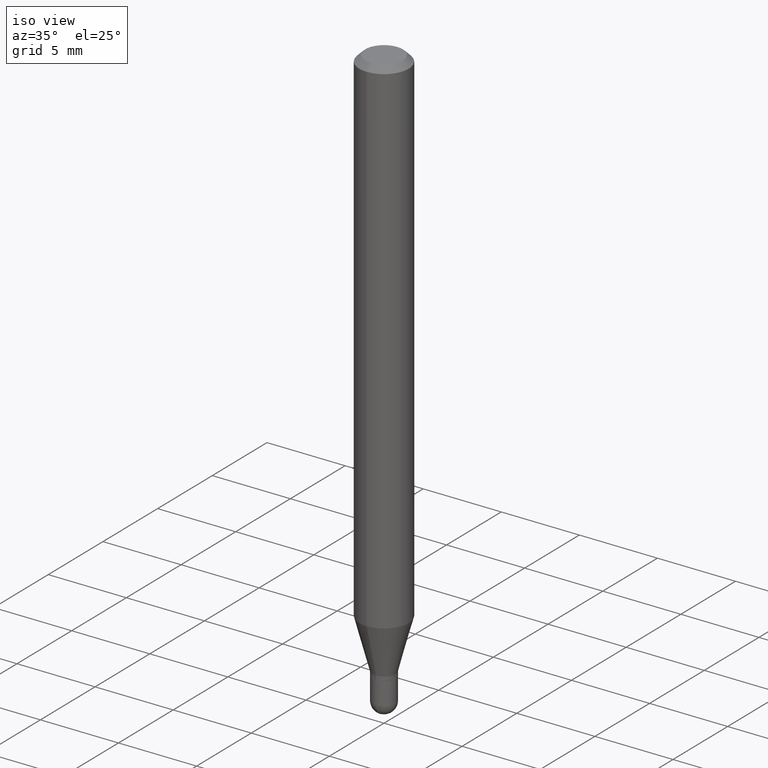
[diagram: clean part render]
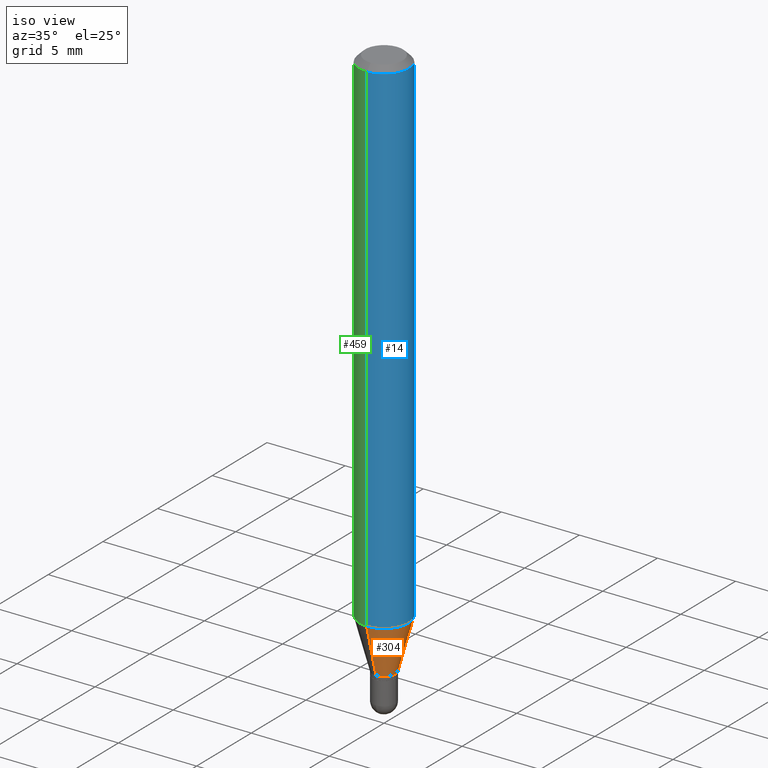
[diagram: same view with three faces highlighted in distinct colors, each labeled with its STEP entity id]
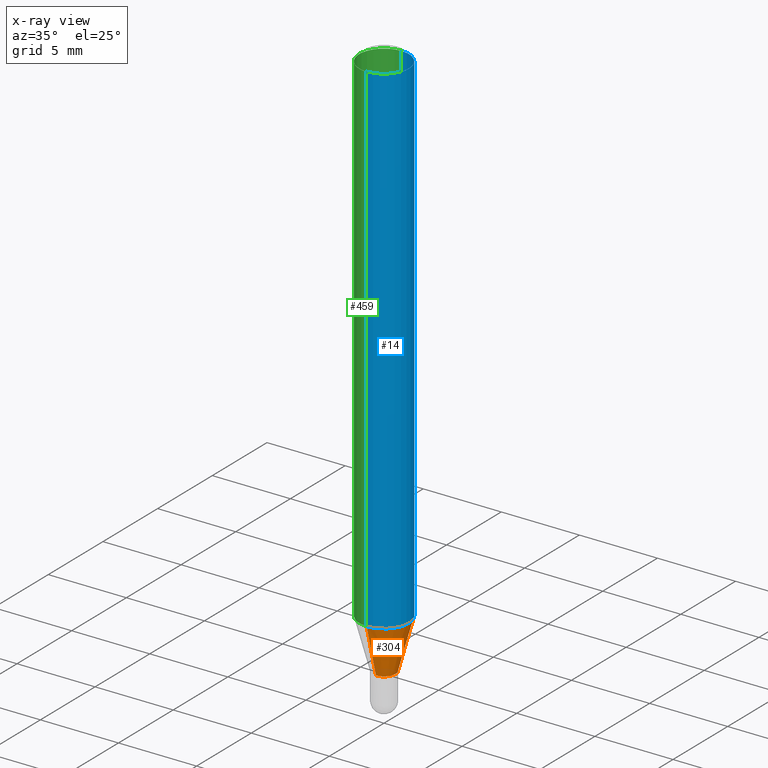
[diagram: x-ray of the same camera — body ghosted, the three highlighted faces saturated]
A machine part, iso view with three faces highlighted in distinct colors.
The next image is the same camera in x-ray (body ghosted, the three faces saturated) — at least one of them is partly hidden behind the body in this view.
Their STEP definitions:

[orange] entity #304 — the highlighted conical surface has half-angle 15 deg.
#1 = CONICAL_SURFACE ( 'NONE', #42, 0.02899999999999992514, 0.2617993877991505736 ) ;
#16 = LINE ( 'NONE', #215, #405 ) ;
#18 = LINE ( 'NONE', #26, #271 ) ;
#26 = CARTESIAN_POINT ( 'NONE',  ( 2.060573933704627882E-16, 0.02899999999999502281, -1.403000000000000025 ) ) ;
#27 = AXIS2_PLACEMENT_3D ( 'NONE', #417, #62, #143 ) ;
#31 = VERTEX_POINT ( 'NONE', #305 ) ;
#33 = ORIENTED_EDGE ( 'NONE', *, *, #41, .T. ) ;
#41 = EDGE_CURVE ( 'NONE', #361, #131, #247, .T. ) ;
#42 = AXIS2_PLACEMENT_3D ( 'NONE', #407, #54, #210 ) ;
#50 = VERTEX_POINT ( 'NONE', #452 ) ;
#54 = DIRECTION ( 'NONE',  ( -2.445483780247488928E-29, 3.491459895133586651E-15, 1.000000000000000000 ) ) ;
#62 = DIRECTION ( 'NONE',  ( -2.445483780247488928E-29, 3.491459895133586651E-15, 1.000000000000000000 ) ) ;
#131 = VERTEX_POINT ( 'NONE', #201 ) ;
#138 = DIRECTION ( 'NONE',  ( -2.445483780247488928E-29, 3.491459895133586651E-15, 1.000000000000000000 ) ) ;
#143 = DIRECTION ( 'NONE',  ( -6.982962677686265922E-15, -1.000000000000000000, 4.370956789862821150E-15 ) ) ;
#178 = CIRCLE ( 'NONE', #27, 0.06250000000000000000 ) ;
#179 = DIRECTION ( 'NONE',  ( 1.839019923739602287E-15, 0.2588190451025252359, 0.9659258262890670910 ) ) ;
#182 = DIRECTION ( 'NONE',  ( -1.807323732225332111E-15, -0.2588190451025184635, 0.9659258262890689783 ) ) ;
#201 = CARTESIAN_POINT ( 'NONE',  ( 3.250733016102783684E-16, 0.02899999999999502281, -1.403000000000000025 ) ) ;
#207 = CARTESIAN_POINT ( 'NONE',  ( -2.025059176528669025E-16, -0.02900000000000482400, -1.403000000000000025 ) ) ;
#208 = EDGE_CURVE ( 'NONE', #131, #50, #18, .T. ) ;
#210 = DIRECTION ( 'NONE',  ( -6.982962677686265922E-15, -1.000000000000000000, 0.000000000000000000 ) ) ;
#214 = ORIENTED_EDGE ( 'NONE', *, *, #352, .F. ) ;
#215 = CARTESIAN_POINT ( 'NONE',  ( -2.025059176528669025E-16, -0.02900000000000482400, -1.403000000000000025 ) ) ;
#216 = DIRECTION ( 'NONE',  ( -6.982962677686265922E-15, -1.000000000000000000, 0.000000000000000000 ) ) ;
#236 = AXIS2_PLACEMENT_3D ( 'NONE', #266, #138, #216 ) ;
#247 = CIRCLE ( 'NONE', #236, 0.02899999999999992514 ) ;
#266 = CARTESIAN_POINT ( 'NONE',  ( 3.431013743687227308E-29, -4.898518232872422508E-15, -1.403000000000000025 ) ) ;
#271 = VECTOR ( 'NONE', #179, 39.37007874015748143 ) ;
#285 = ORIENTED_EDGE ( 'NONE', *, *, #323, .F. ) ;
#304 = ADVANCED_FACE ( 'NONE', ( #411 ), #1, .T. ) ;
#305 = CARTESIAN_POINT ( 'NONE',  ( -4.364351673553605587E-16, -0.06250000000000449640, -1.277976297946442630 ) ) ;
#323 = EDGE_CURVE ( 'NONE', #361, #31, #16, .T. ) ;
#352 = EDGE_CURVE ( 'NONE', #31, #50, #178, .T. ) ;
#361 = VERTEX_POINT ( 'NONE', #207 ) ;
#405 = VECTOR ( 'NONE', #182, 39.37007874015748854 ) ;
#407 = CARTESIAN_POINT ( 'NONE',  ( 3.431013743687227308E-29, -4.898518232872422508E-15, -1.403000000000000025 ) ) ;
#411 = FACE_OUTER_BOUND ( 'NONE', #483, .T. ) ;
#417 = CARTESIAN_POINT ( 'NONE',  ( 3.125270308168757960E-29, -4.462002991211296494E-15, -1.277976297946442852 ) ) ;
#452 = CARTESIAN_POINT ( 'NONE',  ( 4.440892098500935790E-16, 0.06249999999999551054, -1.277976297946443296 ) ) ;
#483 = EDGE_LOOP ( 'NONE', ( #33, #495, #214, #285 ) ) ;
#495 = ORIENTED_EDGE ( 'NONE', *, *, #208, .T. ) ;

[blue] entity #14 — the highlighted cylindrical surface (edge-blend (fillet) strip) has radius 1.5875 mm, axis along (-0, 0, 1).
#14 = ADVANCED_FACE ( 'NONE', ( #429 ), #75, .T. ) ;
#27 = AXIS2_PLACEMENT_3D ( 'NONE', #417, #62, #143 ) ;
#31 = VERTEX_POINT ( 'NONE', #305 ) ;
#50 = VERTEX_POINT ( 'NONE', #452 ) ;
#57 = AXIS2_PLACEMENT_3D ( 'NONE', #168, #130, #321 ) ;
#62 = DIRECTION ( 'NONE',  ( -2.445483780247488928E-29, 3.491459895133586651E-15, 1.000000000000000000 ) ) ;
#74 = VECTOR ( 'NONE', #487, 39.37007874015748143 ) ;
#75 = CYLINDRICAL_SURFACE ( 'NONE', #260, 0.06250000000000000000 ) ;
#76 = EDGE_CURVE ( 'NONE', #124, #250, #338, .T. ) ;
#77 = CARTESIAN_POINT ( 'NONE',  ( -4.364351673553912750E-16, -0.06250000000000005551, -0.01499999999999979128 ) ) ;
#124 = VERTEX_POINT ( 'NONE', #77 ) ;
#130 = DIRECTION ( 'NONE',  ( -2.445483780247488928E-29, 3.491459895133586651E-15, 1.000000000000000000 ) ) ;
#143 = DIRECTION ( 'NONE',  ( -6.982962677686265922E-15, -1.000000000000000000, 4.370956789862821150E-15 ) ) ;
#151 = DIRECTION ( 'NONE',  ( -6.982962677686265922E-15, -1.000000000000000000, 3.491459895133586651E-15 ) ) ;
#168 = CARTESIAN_POINT ( 'NONE',  ( 3.668225670371235459E-31, -5.237189842700382786E-17, -0.01500000000000000812 ) ) ;
#173 = ORIENTED_EDGE ( 'NONE', *, *, #352, .T. ) ;
#178 = CIRCLE ( 'NONE', #27, 0.06250000000000000000 ) ;
#230 = CARTESIAN_POINT ( 'NONE',  ( 0.000000000000000000, 0.000000000000000000, 0.000000000000000000 ) ) ;
#249 = CARTESIAN_POINT ( 'NONE',  ( 4.440892098500625669E-16, 0.06250000000000000000, -2.182162434458491657E-16 ) ) ;
#250 = VERTEX_POINT ( 'NONE', #494 ) ;
#255 = LINE ( 'NONE', #249, #74 ) ;
#260 = AXIS2_PLACEMENT_3D ( 'NONE', #230, #393, #151 ) ;
#277 = EDGE_CURVE ( 'NONE', #31, #124, #485, .T. ) ;
#298 = EDGE_CURVE ( 'NONE', #50, #250, #255, .T. ) ;
#305 = CARTESIAN_POINT ( 'NONE',  ( -4.364351673553605587E-16, -0.06250000000000449640, -1.277976297946442630 ) ) ;
#308 = EDGE_LOOP ( 'NONE', ( #173, #510, #375, #504 ) ) ;
#321 = DIRECTION ( 'NONE',  ( -6.982962677686265922E-15, -1.000000000000000000, 3.483106191921935554E-15 ) ) ;
#338 = CIRCLE ( 'NONE', #57, 0.06250000000000000000 ) ;
#352 = EDGE_CURVE ( 'NONE', #31, #50, #178, .T. ) ;
#372 = CARTESIAN_POINT ( 'NONE',  ( -4.364351673553916201E-16, -0.06250000000000000000, 2.182162434458491657E-16 ) ) ;
#375 = ORIENTED_EDGE ( 'NONE', *, *, #76, .F. ) ;
#393 = DIRECTION ( 'NONE',  ( -2.445483780247488928E-29, 3.491459895133586651E-15, 1.000000000000000000 ) ) ;
#413 = DIRECTION ( 'NONE',  ( -2.445483780247488928E-29, 3.491459895133586651E-15, 1.000000000000000000 ) ) ;
#417 = CARTESIAN_POINT ( 'NONE',  ( 3.125270308168757960E-29, -4.462002991211296494E-15, -1.277976297946442852 ) ) ;
#429 = FACE_OUTER_BOUND ( 'NONE', #308, .T. ) ;
#452 = CARTESIAN_POINT ( 'NONE',  ( 4.440892098500935790E-16, 0.06249999999999551054, -1.277976297946443296 ) ) ;
#479 = VECTOR ( 'NONE', #413, 39.37007874015748143 ) ;
#485 = LINE ( 'NONE', #372, #479 ) ;
#487 = DIRECTION ( 'NONE',  ( -2.445483780247488928E-29, 3.491459895133586651E-15, 1.000000000000000000 ) ) ;
#494 = CARTESIAN_POINT ( 'NONE',  ( 4.440892098500940720E-16, 0.06249999999999995143, -0.01500000000000022669 ) ) ;
#504 = ORIENTED_EDGE ( 'NONE', *, *, #277, .F. ) ;
#510 = ORIENTED_EDGE ( 'NONE', *, *, #298, .T. ) ;

[green] entity #459 — the highlighted cylindrical surface (edge-blend (fillet) strip) has radius 1.5875 mm, axis along (-0, 0, 1).
#3 = DIRECTION ( 'NONE',  ( -6.982962677686265922E-15, -1.000000000000000000, 3.483106191921935554E-15 ) ) ;
#21 = CIRCLE ( 'NONE', #115, 0.06250000000000000000 ) ;
#31 = VERTEX_POINT ( 'NONE', #305 ) ;
#34 = AXIS2_PLACEMENT_3D ( 'NONE', #303, #102, #341 ) ;
#50 = VERTEX_POINT ( 'NONE', #452 ) ;
#60 = CIRCLE ( 'NONE', #381, 0.06250000000000000000 ) ;
#74 = VECTOR ( 'NONE', #487, 39.37007874015748143 ) ;
#77 = CARTESIAN_POINT ( 'NONE',  ( -4.364351673553912750E-16, -0.06250000000000005551, -0.01499999999999979128 ) ) ;
#91 = ORIENTED_EDGE ( 'NONE', *, *, #277, .T. ) ;
#102 = DIRECTION ( 'NONE',  ( -2.445483780247488928E-29, 3.491459895133586651E-15, 1.000000000000000000 ) ) ;
#115 = AXIS2_PLACEMENT_3D ( 'NONE', #376, #368, #217 ) ;
#124 = VERTEX_POINT ( 'NONE', #77 ) ;
#157 = EDGE_CURVE ( 'NONE', #250, #124, #60, .T. ) ;
#205 = DIRECTION ( 'NONE',  ( -2.445483780247488928E-29, 3.491459895133586651E-15, 1.000000000000000000 ) ) ;
#217 = DIRECTION ( 'NONE',  ( -6.982962677686265922E-15, -1.000000000000000000, 4.370956789862821150E-15 ) ) ;
#226 = EDGE_CURVE ( 'NONE', #50, #31, #21, .T. ) ;
#244 = EDGE_LOOP ( 'NONE', ( #486, #390, #91, #469 ) ) ;
#249 = CARTESIAN_POINT ( 'NONE',  ( 4.440892098500625669E-16, 0.06250000000000000000, -2.182162434458491657E-16 ) ) ;
#250 = VERTEX_POINT ( 'NONE', #494 ) ;
#255 = LINE ( 'NONE', #249, #74 ) ;
#277 = EDGE_CURVE ( 'NONE', #31, #124, #485, .T. ) ;
#298 = EDGE_CURVE ( 'NONE', #50, #250, #255, .T. ) ;
#303 = CARTESIAN_POINT ( 'NONE',  ( 0.000000000000000000, 0.000000000000000000, 0.000000000000000000 ) ) ;
#305 = CARTESIAN_POINT ( 'NONE',  ( -4.364351673553605587E-16, -0.06250000000000449640, -1.277976297946442630 ) ) ;
#306 = CYLINDRICAL_SURFACE ( 'NONE', #34, 0.06250000000000000000 ) ;
#314 = CARTESIAN_POINT ( 'NONE',  ( 3.668225670371235459E-31, -5.237189842700382786E-17, -0.01500000000000000812 ) ) ;
#341 = DIRECTION ( 'NONE',  ( -6.982962677686265922E-15, -1.000000000000000000, 3.491459895133586651E-15 ) ) ;
#368 = DIRECTION ( 'NONE',  ( -2.445483780247488928E-29, 3.491459895133586651E-15, 1.000000000000000000 ) ) ;
#372 = CARTESIAN_POINT ( 'NONE',  ( -4.364351673553916201E-16, -0.06250000000000000000, 2.182162434458491657E-16 ) ) ;
#376 = CARTESIAN_POINT ( 'NONE',  ( 3.125270308168757960E-29, -4.462002991211296494E-15, -1.277976297946442852 ) ) ;
#381 = AXIS2_PLACEMENT_3D ( 'NONE', #314, #205, #3 ) ;
#390 = ORIENTED_EDGE ( 'NONE', *, *, #226, .T. ) ;
#413 = DIRECTION ( 'NONE',  ( -2.445483780247488928E-29, 3.491459895133586651E-15, 1.000000000000000000 ) ) ;
#452 = CARTESIAN_POINT ( 'NONE',  ( 4.440892098500935790E-16, 0.06249999999999551054, -1.277976297946443296 ) ) ;
#459 = ADVANCED_FACE ( 'NONE', ( #464 ), #306, .T. ) ;
#464 = FACE_OUTER_BOUND ( 'NONE', #244, .T. ) ;
#469 = ORIENTED_EDGE ( 'NONE', *, *, #157, .F. ) ;
#479 = VECTOR ( 'NONE', #413, 39.37007874015748143 ) ;
#485 = LINE ( 'NONE', #372, #479 ) ;
#486 = ORIENTED_EDGE ( 'NONE', *, *, #298, .F. ) ;
#487 = DIRECTION ( 'NONE',  ( -2.445483780247488928E-29, 3.491459895133586651E-15, 1.000000000000000000 ) ) ;
#494 = CARTESIAN_POINT ( 'NONE',  ( 4.440892098500940720E-16, 0.06249999999999995143, -0.01500000000000022669 ) ) ;